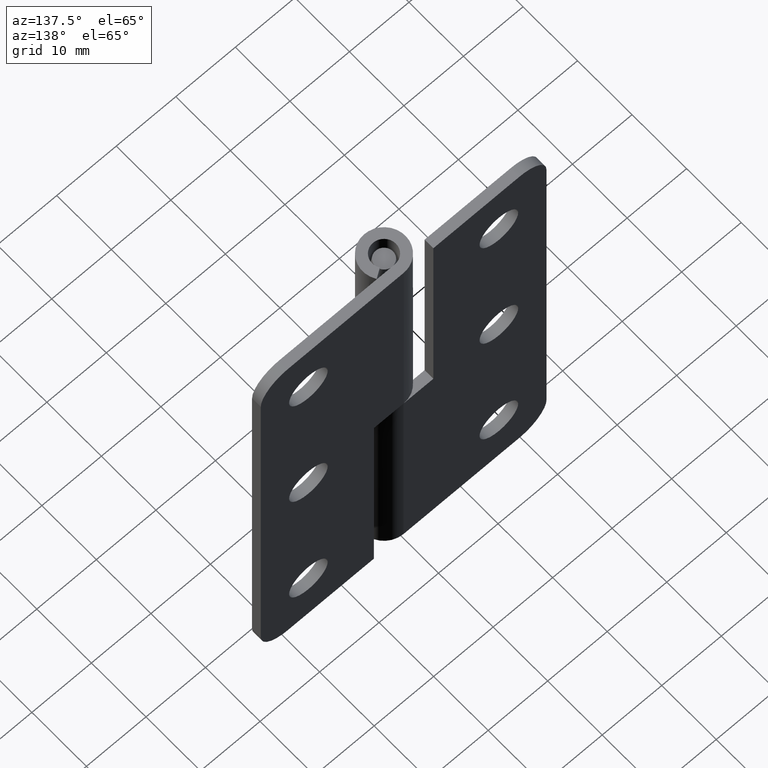
[diagram: clean part render]
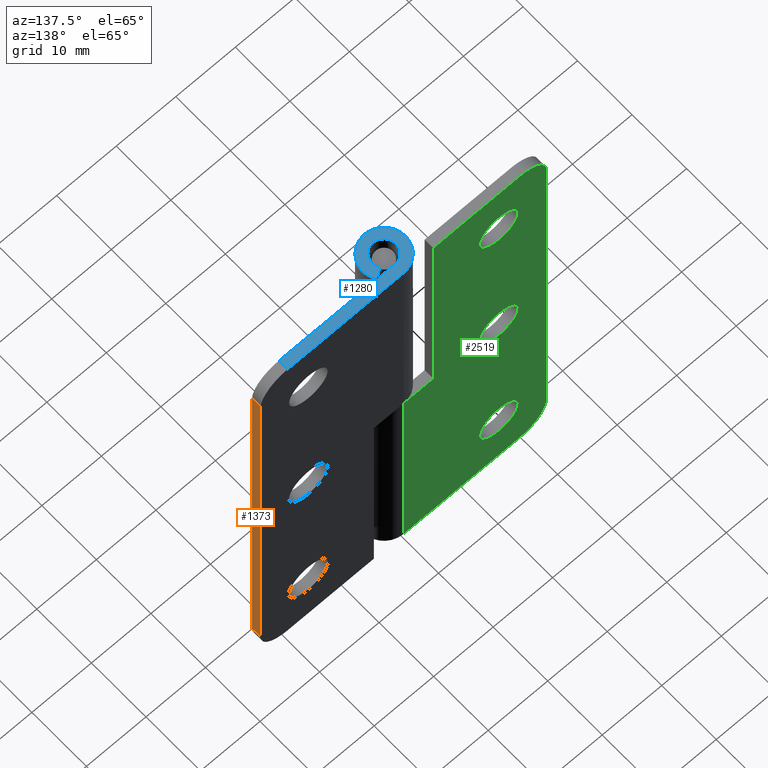
[diagram: same view with three faces highlighted in distinct colors, each labeled with its STEP entity id]
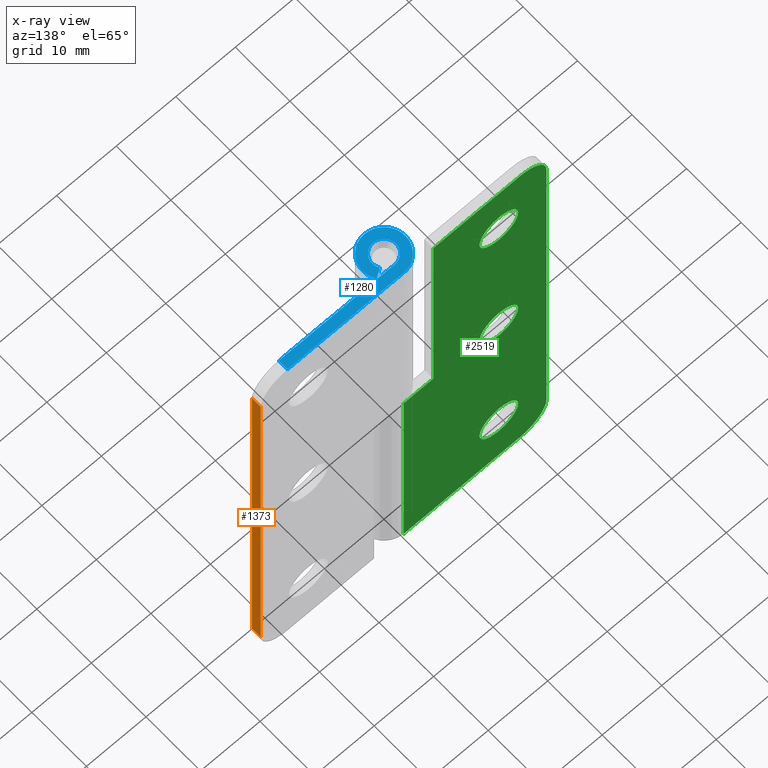
[diagram: x-ray of the same camera — body ghosted, the three highlighted faces saturated]
A machine part, auxiliary view with three faces highlighted in distinct colors.
The next image is the same camera in x-ray (body ghosted, the three faces saturated) — at least one of them is partly hidden behind the body in this view.
Their STEP definitions:

[orange] entity #1373 — the highlighted face is a freeform B-spline surface patch.
#1103=CARTESIAN_POINT('',(24.0,3.600002000000000,4.499999999999949));
#1104=VERTEX_POINT('',#1103);
#1120=CARTESIAN_POINT('',(24.0,2.000004000000000,4.499999999999949));
#1121=VERTEX_POINT('',#1120);
#1122=CARTESIAN_POINT('',(24.0,2.000004000000000,4.499999999999949));
#1123=CARTESIAN_POINT('',(24.0,3.600002000000000,4.499999999999949));
#1124=QUASI_UNIFORM_CURVE('',1,(#1122,#1123),.UNSPECIFIED.,.F.,.U.);
#1125=EDGE_CURVE('',#1121,#1104,#1124,.T.);
#1166=CARTESIAN_POINT('',(24.0,3.600002000000000,72.0));
#1167=VERTEX_POINT('',#1166);
#1188=CARTESIAN_POINT('',(24.0,2.000004000000000,72.0));
#1189=VERTEX_POINT('',#1188);
#1203=CARTESIAN_POINT('',(24.0,3.600002000000000,72.0));
#1204=CARTESIAN_POINT('',(24.0,2.000004000000000,72.0));
#1205=QUASI_UNIFORM_CURVE('',1,(#1203,#1204),.UNSPECIFIED.,.F.,.U.);
#1206=EDGE_CURVE('',#1167,#1189,#1205,.T.);
#1354=CARTESIAN_POINT('',(24.0,1.920084148060016,1.128375130828042));
#1355=CARTESIAN_POINT('',(24.0,1.920084148060016,75.371626679662995));
#1356=CARTESIAN_POINT('',(24.0,3.679921937770566,1.128375130828042));
#1357=CARTESIAN_POINT('',(24.0,3.679921937770566,75.371626679662995));
#1358=B_SPLINE_SURFACE_WITH_KNOTS('',1,1,((#1354,#1356),(#1355,#1357)),.UNSPECIFIED.,.F.,.F.,.U.,(2,2),(2,2),(0.0,74.243251548834948),(0.041708358416706,0.958291686286777),.UNSPECIFIED.);
#1359=CARTESIAN_POINT('',(24.0,2.000004000000000,4.499999999999949));
#1360=CARTESIAN_POINT('',(24.0,2.000004000000000,72.0));
#1361=QUASI_UNIFORM_CURVE('',1,(#1359,#1360),.UNSPECIFIED.,.F.,.U.);
#1362=EDGE_CURVE('',#1121,#1189,#1361,.T.);
#1363=ORIENTED_EDGE('',*,*,#1362,.F.);
#1364=ORIENTED_EDGE('',*,*,#1125,.T.);
#1365=CARTESIAN_POINT('',(24.0,3.600002000000000,4.499999999999949));
#1366=CARTESIAN_POINT('',(24.0,3.600002000000000,72.0));
#1367=QUASI_UNIFORM_CURVE('',1,(#1365,#1366),.UNSPECIFIED.,.F.,.U.);
#1368=EDGE_CURVE('',#1104,#1167,#1367,.T.);
#1369=ORIENTED_EDGE('',*,*,#1368,.T.);
#1370=ORIENTED_EDGE('',*,*,#1206,.T.);
#1371=EDGE_LOOP('',(#1363,#1364,#1369,#1370));
#1372=FACE_OUTER_BOUND('',#1371,.T.);
#1373=ADVANCED_FACE('',(#1372),#1358,.F.);

[blue] entity #1280 — the highlighted face is a freeform B-spline surface patch.
#1164=CARTESIAN_POINT('',(19.500000000000000,3.600002000000000,76.500000000000000));
#1165=VERTEX_POINT('',#1164);
#1181=CARTESIAN_POINT('',(19.500000000000000,2.000004000000000,76.500000000000000));
#1182=VERTEX_POINT('',#1181);
#1183=CARTESIAN_POINT('',(19.500000000000000,2.000004000000000,76.500000000000000));
#1184=CARTESIAN_POINT('',(19.500000000000000,3.600002000000000,76.500000000000000));
#1185=QUASI_UNIFORM_CURVE('',1,(#1183,#1184),.UNSPECIFIED.,.F.,.U.);
#1186=EDGE_CURVE('',#1182,#1165,#1185,.T.);
#1211=CARTESIAN_POINT('',(-4.753441912770849,-3.958021162051402,76.500000000000000));
#1212=CARTESIAN_POINT('',(20.653826400589910,-3.958021162051402,76.500000000000000));
#1213=CARTESIAN_POINT('',(-4.753441912770849,3.959565260835687,76.500000000000000));
#1214=CARTESIAN_POINT('',(20.653826400589910,3.959565260835687,76.500000000000000));
#1215=B_SPLINE_SURFACE_WITH_KNOTS('',1,1,((#1211,#1213),(#1212,#1214)),.UNSPECIFIED.,.F.,.F.,.U.,(2,2),(2,2),(0.0,25.407268313360760),(0.0,7.917586422887089),.UNSPECIFIED.);
#1216=CARTESIAN_POINT('',(0.0,2.000004000000000,76.500000000000000));
#1217=VERTEX_POINT('',#1216);
#1218=CARTESIAN_POINT('',(19.500000000000000,2.000004000000000,76.500000000000000));
#1219=CARTESIAN_POINT('',(0.0,2.000004000000000,76.500000000000000));
#1220=QUASI_UNIFORM_CURVE('',1,(#1218,#1219),.UNSPECIFIED.,.F.,.U.);
#1221=EDGE_CURVE('',#1182,#1217,#1220,.T.);
#1222=ORIENTED_EDGE('',*,*,#1221,.F.);
#1223=ORIENTED_EDGE('',*,*,#1186,.T.);
#1224=CARTESIAN_POINT('',(3.552714E-015,3.600002000000000,76.500000000000000));
#1225=VERTEX_POINT('',#1224);
#1226=CARTESIAN_POINT('',(3.552714E-015,3.600002000000000,76.500000000000000));
#1227=CARTESIAN_POINT('',(19.500000000000000,3.600002000000000,76.500000000000000));
#1228=QUASI_UNIFORM_CURVE('',1,(#1226,#1227),.UNSPECIFIED.,.F.,.U.);
#1229=EDGE_CURVE('',#1225,#1165,#1228,.T.);
#1230=ORIENTED_EDGE('',*,*,#1229,.F.);
#1231=CARTESIAN_POINT('',(3.026135952000170,1.950004000000000,76.500000000000000));
#1232=VERTEX_POINT('',#1231);
#1233=CARTESIAN_POINT('',(3.026135952000172,1.950004000000004,76.500000000000000));
#1234=CARTESIAN_POINT('',(4.541422579701197,-0.401510838775281,76.500000000000000));
#1235=CARTESIAN_POINT('',(2.637066834372013,-2.450692333006975,76.500000000000000));
#1236=CARTESIAN_POINT('',(0.732711089042830,-4.499873827238669,76.500000000000000));
#1237=CARTESIAN_POINT('',(-1.723368228208354,-3.160698712311251,76.500000000000000));
#1238=CARTESIAN_POINT('',(-4.179447545459538,-1.821523597383835,76.500000000000000));
#1239=CARTESIAN_POINT('',(-3.488447798500210,0.889239201308085,76.500000000000000));
#1240=CARTESIAN_POINT('',(-2.797448051540883,3.600002000000000,76.500000000000000));
#1241=CARTESIAN_POINT('',(0.0,3.600002000000000,76.500000000000000));
#1249=(BOUNDED_CURVE()B_SPLINE_CURVE(2,(#1233,#1234,#1235,#1236,#1237,#1238,#1239,#1240,#1241),.UNSPECIFIED.,.F.,.U.)B_SPLINE_CURVE_WITH_KNOTS((3,2,2,2,3),(0.0,0.250000000000000,0.500000000000000,0.750000000000000,1.0),.UNSPECIFIED.)CURVE()GEOMETRIC_REPRESENTATION_ITEM()RATIONAL_B_SPLINE_CURVE((1.0,0.789623566018660,1.0,0.789623566018660,1.0,0.789623566018660,1.0,0.789623566018660,1.0))REPRESENTATION_ITEM(''));
#1250=EDGE_CURVE('',#1232,#1225,#1249,.T.);
#1251=ORIENTED_EDGE('',*,*,#1250,.F.);
#1252=CARTESIAN_POINT('',(1.681189068379450,1.083337120372716,76.500000000000000));
#1253=VERTEX_POINT('',#1252);
#1254=CARTESIAN_POINT('',(1.681189068379450,1.083337120372716,76.500000000000000));
#1255=CARTESIAN_POINT('',(3.026135952000170,1.950004000000000,76.500000000000000));
#1256=QUASI_UNIFORM_CURVE('',1,(#1254,#1255),.UNSPECIFIED.,.F.,.U.);
#1257=EDGE_CURVE('',#1253,#1232,#1256,.T.);
#1258=ORIENTED_EDGE('',*,*,#1257,.F.);
#1259=CARTESIAN_POINT('',(1.681189068379448,1.083337120372715,76.500000000000000));
#1260=CARTESIAN_POINT('',(2.523016188627871,-0.223061899297254,76.500000000000014));
#1261=CARTESIAN_POINT('',(1.465039246370244,-1.361497707163295,76.500000000000000));
#1262=CARTESIAN_POINT('',(0.407062304112617,-2.499933515029336,76.500000000000014));
#1263=CARTESIAN_POINT('',(-0.957428176398127,-1.755946265423563,76.500000000000000));
#1264=CARTESIAN_POINT('',(-2.321918656908872,-1.011959015817789,76.500000000000014));
#1265=CARTESIAN_POINT('',(-1.938029354092475,0.494022492091105,76.500000000000000));
#1266=CARTESIAN_POINT('',(-1.554140051276078,2.000004000000001,76.500000000000014));
#1267=CARTESIAN_POINT('',(0.0,2.000004000000000,76.500000000000000));
#1275=(BOUNDED_CURVE()B_SPLINE_CURVE(2,(#1259,#1260,#1261,#1262,#1263,#1264,#1265,#1266,#1267),.UNSPECIFIED.,.F.,.U.)B_SPLINE_CURVE_WITH_KNOTS((3,2,2,2,3),(0.0,0.250000000000000,0.500000000000000,0.750000000000000,1.0),.UNSPECIFIED.)CURVE()GEOMETRIC_REPRESENTATION_ITEM()RATIONAL_B_SPLINE_CURVE((1.0,0.789623566018660,1.0,0.789623566018660,1.0,0.789623566018660,1.0,0.789623566018660,1.0))REPRESENTATION_ITEM(''));
#1276=EDGE_CURVE('',#1253,#1217,#1275,.T.);
#1277=ORIENTED_EDGE('',*,*,#1276,.T.);
#1278=EDGE_LOOP('',(#1222,#1223,#1230,#1251,#1258,#1277));
#1279=FACE_OUTER_BOUND('',#1278,.T.);
#1280=ADVANCED_FACE('',(#1279),#1215,.T.);

[green] entity #2519 — the highlighted face is a freeform B-spline surface patch.
#1534=CARTESIAN_POINT('',(-16.0,3.600002000000000,69.500000000000000));
#1535=VERTEX_POINT('',#1534);
#1536=CARTESIAN_POINT('',(-19.239981334625838,3.600002000000000,66.504992061202245));
#1537=VERTEX_POINT('',#1536);
#1538=CARTESIAN_POINT('',(-16.0,3.600002000000000,69.500000000000000));
#1539=CARTESIAN_POINT('',(-19.004269097727789,3.600002000000001,69.500000000000000));
#1540=CARTESIAN_POINT('',(-19.239981334625838,3.600002000000000,66.504992061202245));
#1548=(BOUNDED_CURVE()B_SPLINE_CURVE(2,(#1538,#1539,#1540),.UNSPECIFIED.,.F.,.U.)B_SPLINE_CURVE_WITH_KNOTS((3,3),(0.0,0.236331300623586),.UNSPECIFIED.)CURVE()GEOMETRIC_REPRESENTATION_ITEM()RATIONAL_B_SPLINE_CURVE((1.0,0.723120658615952,0.969723356152656))REPRESENTATION_ITEM(''));
#1549=EDGE_CURVE('',#1535,#1537,#1548,.T.);
#1551=CARTESIAN_POINT('',(-12.760018665374171,3.600002000000000,65.995007938797755));
#1552=VERTEX_POINT('',#1551);
#1553=CARTESIAN_POINT('',(-12.760018665374162,3.600002000000001,65.995007938797755));
#1554=CARTESIAN_POINT('',(-12.750000000000007,3.600002000000000,66.122307152137921));
#1555=CARTESIAN_POINT('',(-12.750000000000000,3.600002000000000,66.250000000000000));
#1556=CARTESIAN_POINT('',(-12.750000000000002,3.600002000000001,69.500000000000000));
#1557=CARTESIAN_POINT('',(-16.0,3.600002000000000,69.500000000000000));
#1565=(BOUNDED_CURVE()B_SPLINE_CURVE(2,(#1553,#1554,#1555,#1556,#1557),.UNSPECIFIED.,.F.,.U.)B_SPLINE_CURVE_WITH_KNOTS((3,2,3),(0.736331300623587,0.750000000000000,1.0),.UNSPECIFIED.)CURVE()GEOMETRIC_REPRESENTATION_ITEM()RATIONAL_B_SPLINE_CURVE((0.969723356152659,0.983986122570596,1.0,0.707106781186547,1.0))REPRESENTATION_ITEM(''));
#1566=EDGE_CURVE('',#1552,#1535,#1565,.T.);
#1633=CARTESIAN_POINT('',(-16.0,3.600002000000000,63.0));
#1634=VERTEX_POINT('',#1633);
#1635=CARTESIAN_POINT('',(-19.239981334625842,3.600002000000000,66.504992061202245));
#1636=CARTESIAN_POINT('',(-19.250000000000000,3.600002000000001,66.377692847862093));
#1637=CARTESIAN_POINT('',(-19.250000000000000,3.600002000000000,66.250000000000000));
#1638=CARTESIAN_POINT('',(-19.250000000000000,3.600002000000001,63.0));
#1639=CARTESIAN_POINT('',(-16.0,3.600002000000000,63.0));
#1647=(BOUNDED_CURVE()B_SPLINE_CURVE(2,(#1635,#1636,#1637,#1638,#1639),.UNSPECIFIED.,.F.,.U.)B_SPLINE_CURVE_WITH_KNOTS((3,2,3),(0.236331300623587,0.250000000000000,0.500000000000000),.UNSPECIFIED.)CURVE()GEOMETRIC_REPRESENTATION_ITEM()RATIONAL_B_SPLINE_CURVE((0.969723356152657,0.983986122570595,1.0,0.707106781186547,1.0))REPRESENTATION_ITEM(''));
#1648=EDGE_CURVE('',#1537,#1634,#1647,.T.);
#1682=CARTESIAN_POINT('',(-16.0,3.600002000000000,63.0));
#1683=CARTESIAN_POINT('',(-12.995730902272211,3.600002000000000,63.000000000000007));
#1684=CARTESIAN_POINT('',(-12.760018665374171,3.600002000000001,65.995007938797755));
#1692=(BOUNDED_CURVE()B_SPLINE_CURVE(2,(#1682,#1683,#1684),.UNSPECIFIED.,.F.,.U.)B_SPLINE_CURVE_WITH_KNOTS((3,3),(0.500000000000000,0.736331300623587),.UNSPECIFIED.)CURVE()GEOMETRIC_REPRESENTATION_ITEM()RATIONAL_B_SPLINE_CURVE((1.0,0.723120658615952,0.969723356152657))REPRESENTATION_ITEM(''));
#1693=EDGE_CURVE('',#1634,#1552,#1692,.T.);
#1716=CARTESIAN_POINT('',(-16.0,3.600002000000000,41.500000000000000));
#1717=VERTEX_POINT('',#1716);
#1718=CARTESIAN_POINT('',(-19.239981334625838,3.600002000000000,38.504992061202252));
#1719=VERTEX_POINT('',#1718);
#1720=CARTESIAN_POINT('',(-16.0,3.600002000000000,41.500000000000000));
#1721=CARTESIAN_POINT('',(-19.004269097727803,3.600002000000002,41.500000000000000));
#1722=CARTESIAN_POINT('',(-19.239981334625842,3.600002000000000,38.504992061202245));
#1730=(BOUNDED_CURVE()B_SPLINE_CURVE(2,(#1720,#1721,#1722),.UNSPECIFIED.,.F.,.U.)B_SPLINE_CURVE_WITH_KNOTS((3,3),(0.0,0.236331300623587),.UNSPECIFIED.)CURVE()GEOMETRIC_REPRESENTATION_ITEM()RATIONAL_B_SPLINE_CURVE((1.0,0.723120658615951,0.969723356152658))REPRESENTATION_ITEM(''));
#1731=EDGE_CURVE('',#1717,#1719,#1730,.T.);
#1733=CARTESIAN_POINT('',(-12.760018665374160,3.600002000000000,37.995007938797762));
#1734=VERTEX_POINT('',#1733);
#1735=CARTESIAN_POINT('',(-12.760018665374165,3.600002000000000,37.995007938797755));
#1736=CARTESIAN_POINT('',(-12.750000000000004,3.600002000000001,38.122307152137914));
#1737=CARTESIAN_POINT('',(-12.750000000000000,3.600002000000000,38.250000000000000));
#1738=CARTESIAN_POINT('',(-12.750000000000002,3.600002000000001,41.500000000000000));
#1739=CARTESIAN_POINT('',(-16.0,3.600002000000000,41.500000000000000));
#1747=(BOUNDED_CURVE()B_SPLINE_CURVE(2,(#1735,#1736,#1737,#1738,#1739),.UNSPECIFIED.,.F.,.U.)B_SPLINE_CURVE_WITH_KNOTS((3,2,3),(0.736331300623587,0.750000000000000,1.0),.UNSPECIFIED.)CURVE()GEOMETRIC_REPRESENTATION_ITEM()RATIONAL_B_SPLINE_CURVE((0.969723356152658,0.983986122570596,1.0,0.707106781186547,1.0))REPRESENTATION_ITEM(''));
#1748=EDGE_CURVE('',#1734,#1717,#1747,.T.);
#1815=CARTESIAN_POINT('',(-16.0,3.600002000000000,34.999999999999993));
#1816=VERTEX_POINT('',#1815);
#1817=CARTESIAN_POINT('',(-19.239981334625835,3.600002000000000,38.504992061202245));
#1818=CARTESIAN_POINT('',(-19.249999999999996,3.600002000000000,38.377692847862072));
#1819=CARTESIAN_POINT('',(-19.250000000000000,3.600002000000000,38.250000000000000));
#1820=CARTESIAN_POINT('',(-19.250000000000000,3.600002000000001,35.0));
#1821=CARTESIAN_POINT('',(-16.0,3.600002000000000,34.999999999999993));
#1829=(BOUNDED_CURVE()B_SPLINE_CURVE(2,(#1817,#1818,#1819,#1820,#1821),.UNSPECIFIED.,.F.,.U.)B_SPLINE_CURVE_WITH_KNOTS((3,2,3),(0.236331300623587,0.250000000000000,0.500000000000000),.UNSPECIFIED.)CURVE()GEOMETRIC_REPRESENTATION_ITEM()RATIONAL_B_SPLINE_CURVE((0.969723356152658,0.983986122570596,1.0,0.707106781186547,1.0))REPRESENTATION_ITEM(''));
#1830=EDGE_CURVE('',#1719,#1816,#1829,.T.);
#1864=CARTESIAN_POINT('',(-16.0,3.600002000000000,34.999999999999993));
#1865=CARTESIAN_POINT('',(-12.995730902272211,3.600002000000000,34.999999999999993));
#1866=CARTESIAN_POINT('',(-12.760018665374160,3.600002000000001,37.995007938797755));
#1874=(BOUNDED_CURVE()B_SPLINE_CURVE(2,(#1864,#1865,#1866),.UNSPECIFIED.,.F.,.U.)B_SPLINE_CURVE_WITH_KNOTS((3,3),(0.500000000000000,0.736331300623587),.UNSPECIFIED.)CURVE()GEOMETRIC_REPRESENTATION_ITEM()RATIONAL_B_SPLINE_CURVE((1.0,0.723120658615952,0.969723356152657))REPRESENTATION_ITEM(''));
#1875=EDGE_CURVE('',#1816,#1734,#1874,.T.);
#1898=CARTESIAN_POINT('',(-16.0,3.600002000000000,13.500000000000000));
#1899=VERTEX_POINT('',#1898);
#1900=CARTESIAN_POINT('',(-19.239981334625838,3.600002000000000,10.504992061202250));
#1901=VERTEX_POINT('',#1900);
#1902=CARTESIAN_POINT('',(-16.0,3.600002000000000,13.500000000000000));
#1903=CARTESIAN_POINT('',(-19.004269097727793,3.600002000000000,13.499999999999998));
#1904=CARTESIAN_POINT('',(-19.239981334625842,3.600002000000001,10.504992061202252));
#1912=(BOUNDED_CURVE()B_SPLINE_CURVE(2,(#1902,#1903,#1904),.UNSPECIFIED.,.F.,.U.)B_SPLINE_CURVE_WITH_KNOTS((3,3),(0.0,0.236331300623587),.UNSPECIFIED.)CURVE()GEOMETRIC_REPRESENTATION_ITEM()RATIONAL_B_SPLINE_CURVE((1.0,0.723120658615952,0.969723356152657))REPRESENTATION_ITEM(''));
#1913=EDGE_CURVE('',#1899,#1901,#1912,.T.);
#1915=CARTESIAN_POINT('',(-12.760018665374171,3.600002000000001,9.995007938797750));
#1916=VERTEX_POINT('',#1915);
#1917=CARTESIAN_POINT('',(-12.760018665374167,3.600002000000001,9.995007938797750));
#1918=CARTESIAN_POINT('',(-12.750000000000004,3.600002000000000,10.122307152137919));
#1919=CARTESIAN_POINT('',(-12.750000000000000,3.600002000000000,10.250000000000000));
#1920=CARTESIAN_POINT('',(-12.750000000000002,3.600002000000001,13.500000000000000));
#1921=CARTESIAN_POINT('',(-16.0,3.600002000000000,13.500000000000000));
#1929=(BOUNDED_CURVE()B_SPLINE_CURVE(2,(#1917,#1918,#1919,#1920,#1921),.UNSPECIFIED.,.F.,.U.)B_SPLINE_CURVE_WITH_KNOTS((3,2,3),(0.736331300623587,0.750000000000000,1.0),.UNSPECIFIED.)CURVE()GEOMETRIC_REPRESENTATION_ITEM()RATIONAL_B_SPLINE_CURVE((0.969723356152657,0.983986122570596,1.0,0.707106781186547,1.0))REPRESENTATION_ITEM(''));
#1930=EDGE_CURVE('',#1916,#1899,#1929,.T.);
#1997=CARTESIAN_POINT('',(-16.0,3.600002000000000,7.000000000000001));
#1998=VERTEX_POINT('',#1997);
#1999=CARTESIAN_POINT('',(-19.239981334625838,3.600002000000000,10.504992061202248));
#2000=CARTESIAN_POINT('',(-19.250000000000000,3.600002000000001,10.377692847862079));
#2001=CARTESIAN_POINT('',(-19.250000000000000,3.600002000000000,10.250000000000000));
#2002=CARTESIAN_POINT('',(-19.250000000000000,3.600002000000001,7.000000000000002));
#2003=CARTESIAN_POINT('',(-16.0,3.600002000000000,7.000000000000001));
#2011=(BOUNDED_CURVE()B_SPLINE_CURVE(2,(#1999,#2000,#2001,#2002,#2003),.UNSPECIFIED.,.F.,.U.)B_SPLINE_CURVE_WITH_KNOTS((3,2,3),(0.236331300623587,0.250000000000000,0.500000000000000),.UNSPECIFIED.)CURVE()GEOMETRIC_REPRESENTATION_ITEM()RATIONAL_B_SPLINE_CURVE((0.969723356152658,0.983986122570596,1.0,0.707106781186547,1.0))REPRESENTATION_ITEM(''));
#2012=EDGE_CURVE('',#1901,#1998,#2011,.T.);
#2046=CARTESIAN_POINT('',(-16.0,3.600002000000000,7.000000000000001));
#2047=CARTESIAN_POINT('',(-12.995730902272211,3.600002000000000,7.000000000000002));
#2048=CARTESIAN_POINT('',(-12.760018665374171,3.600002000000001,9.995007938797750));
#2056=(BOUNDED_CURVE()B_SPLINE_CURVE(2,(#2046,#2047,#2048),.UNSPECIFIED.,.F.,.U.)B_SPLINE_CURVE_WITH_KNOTS((3,3),(0.500000000000000,0.736331300623587),.UNSPECIFIED.)CURVE()GEOMETRIC_REPRESENTATION_ITEM()RATIONAL_B_SPLINE_CURVE((1.0,0.723120658615952,0.969723356152657))REPRESENTATION_ITEM(''));
#2057=EDGE_CURVE('',#1998,#1916,#2056,.T.);
#2076=CARTESIAN_POINT('',(-5.0,3.600002000000000,38.250000000000000));
#2077=VERTEX_POINT('',#2076);
#2083=CARTESIAN_POINT('',(-5.0,3.600002000000000,76.500000000000000));
#2084=VERTEX_POINT('',#2083);
#2085=CARTESIAN_POINT('',(-5.0,3.600002000000000,38.250000000000000));
#2086=CARTESIAN_POINT('',(-5.0,3.600002000000000,76.500000000000000));
#2087=QUASI_UNIFORM_CURVE('',1,(#2085,#2086),.UNSPECIFIED.,.F.,.U.);
#2088=EDGE_CURVE('',#2077,#2084,#2087,.T.);
#2138=CARTESIAN_POINT('',(0.0,3.600002000000000,38.250000000000000));
#2139=VERTEX_POINT('',#2138);
#2159=CARTESIAN_POINT('',(0.0,3.600002000000000,38.250000000000000));
#2160=CARTESIAN_POINT('',(-5.0,3.600002000000000,38.250000000000000));
#2161=QUASI_UNIFORM_CURVE('',1,(#2159,#2160),.UNSPECIFIED.,.F.,.U.);
#2162=EDGE_CURVE('',#2139,#2077,#2161,.T.);
#2182=CARTESIAN_POINT('',(-19.500000000000000,3.600002000000000,0.0));
#2183=VERTEX_POINT('',#2182);
#2184=CARTESIAN_POINT('',(-24.0,3.600002000000000,4.499999999999949));
#2185=VERTEX_POINT('',#2184);
#2186=CARTESIAN_POINT('',(-19.500000000000000,3.600002000000000,-5.030698E-014));
#2187=CARTESIAN_POINT('',(-24.0,3.600002000000001,-5.030698E-014));
#2188=CARTESIAN_POINT('',(-24.0,3.600002000000000,4.499999999999949));
#2196=(BOUNDED_CURVE()B_SPLINE_CURVE(2,(#2186,#2187,#2188),.UNSPECIFIED.,.F.,.U.)CURVE()GEOMETRIC_REPRESENTATION_ITEM()QUASI_UNIFORM_CURVE()RATIONAL_B_SPLINE_CURVE((1.0,0.707106781186547,1.0))REPRESENTATION_ITEM(''));
#2197=EDGE_CURVE('',#2183,#2185,#2196,.T.);
#2243=CARTESIAN_POINT('',(-24.0,3.600002000000000,72.0));
#2244=VERTEX_POINT('',#2243);
#2245=CARTESIAN_POINT('',(-19.500000000000000,3.600002000000000,76.500000000000000));
#2246=VERTEX_POINT('',#2245);
#2247=CARTESIAN_POINT('',(-24.0,3.600002000000000,72.0));
#2248=CARTESIAN_POINT('',(-24.0,3.600002000000001,76.500000000000000));
#2249=CARTESIAN_POINT('',(-19.500000000000000,3.600002000000000,76.500000000000000));
#2257=(BOUNDED_CURVE()B_SPLINE_CURVE(2,(#2247,#2248,#2249),.UNSPECIFIED.,.F.,.U.)CURVE()GEOMETRIC_REPRESENTATION_ITEM()QUASI_UNIFORM_CURVE()RATIONAL_B_SPLINE_CURVE((1.0,0.707106781186547,1.0))REPRESENTATION_ITEM(''));
#2258=EDGE_CURVE('',#2244,#2246,#2257,.T.);
#2301=CARTESIAN_POINT('',(-5.0,3.600002000000000,76.500000000000000));
#2302=CARTESIAN_POINT('',(-19.500000000000000,3.600002000000000,76.500000000000000));
#2303=QUASI_UNIFORM_CURVE('',1,(#2301,#2302),.UNSPECIFIED.,.F.,.U.);
#2304=EDGE_CURVE('',#2084,#2246,#2303,.T.);
#2323=CARTESIAN_POINT('',(6.615317E-015,3.600002000000000,0.0));
#2324=VERTEX_POINT('',#2323);
#2325=CARTESIAN_POINT('',(6.615317E-015,3.600002000000000,0.0));
#2326=CARTESIAN_POINT('',(-19.500000000000000,3.600002000000000,0.0));
#2327=QUASI_UNIFORM_CURVE('',1,(#2325,#2326),.UNSPECIFIED.,.F.,.U.);
#2328=EDGE_CURVE('',#2324,#2183,#2327,.T.);
#2402=CARTESIAN_POINT('',(6.615317E-015,3.600002000000000,0.0));
#2403=CARTESIAN_POINT('',(0.0,3.600002000000000,38.250000000000000));
#2404=QUASI_UNIFORM_CURVE('',1,(#2402,#2403),.UNSPECIFIED.,.F.,.U.);
#2405=EDGE_CURVE('',#2324,#2139,#2404,.T.);
#2471=CARTESIAN_POINT('',(-24.0,3.600002000000000,4.499999999999949));
#2472=CARTESIAN_POINT('',(-24.0,3.600002000000000,72.0));
#2473=QUASI_UNIFORM_CURVE('',1,(#2471,#2472),.UNSPECIFIED.,.F.,.U.);
#2474=EDGE_CURVE('',#2185,#2244,#2473,.T.);
#2486=CARTESIAN_POINT('',(-25.198799953483348,3.600002000000000,-3.821174851728156));
#2487=CARTESIAN_POINT('',(-25.198799953483341,3.600002000000000,80.321176903618067));
#2488=CARTESIAN_POINT('',(1.198800597213515,3.600002000000000,-3.821174851728156));
#2489=CARTESIAN_POINT('',(1.198800597213515,3.600002000000000,80.321176903618067));
#2490=B_SPLINE_SURFACE_WITH_KNOTS('',1,1,((#2486,#2488),(#2487,#2489)),.UNSPECIFIED.,.F.,.F.,.U.,(2,2),(2,2),(0.0,84.142351755346226),(0.0,26.397600550696861),.UNSPECIFIED.);
#2491=ORIENTED_EDGE('',*,*,#2162,.F.);
#2492=ORIENTED_EDGE('',*,*,#2405,.F.);
#2493=ORIENTED_EDGE('',*,*,#2328,.T.);
#2494=ORIENTED_EDGE('',*,*,#2197,.T.);
#2495=ORIENTED_EDGE('',*,*,#2474,.T.);
#2496=ORIENTED_EDGE('',*,*,#2258,.T.);
#2497=ORIENTED_EDGE('',*,*,#2304,.F.);
#2498=ORIENTED_EDGE('',*,*,#2088,.F.);
#2499=EDGE_LOOP('',(#2491,#2492,#2493,#2494,#2495,#2496,#2497,#2498));
#2500=FACE_OUTER_BOUND('',#2499,.T.);
#2501=ORIENTED_EDGE('',*,*,#2057,.T.);
#2502=ORIENTED_EDGE('',*,*,#1930,.T.);
#2503=ORIENTED_EDGE('',*,*,#1913,.T.);
#2504=ORIENTED_EDGE('',*,*,#2012,.T.);
#2505=EDGE_LOOP('',(#2501,#2502,#2503,#2504));
#2506=FACE_BOUND('',#2505,.T.);
#2507=ORIENTED_EDGE('',*,*,#1875,.T.);
#2508=ORIENTED_EDGE('',*,*,#1748,.T.);
#2509=ORIENTED_EDGE('',*,*,#1731,.T.);
#2510=ORIENTED_EDGE('',*,*,#1830,.T.);
#2511=EDGE_LOOP('',(#2507,#2508,#2509,#2510));
#2512=FACE_BOUND('',#2511,.T.);
#2513=ORIENTED_EDGE('',*,*,#1693,.T.);
#2514=ORIENTED_EDGE('',*,*,#1566,.T.);
#2515=ORIENTED_EDGE('',*,*,#1549,.T.);
#2516=ORIENTED_EDGE('',*,*,#1648,.T.);
#2517=EDGE_LOOP('',(#2513,#2514,#2515,#2516));
#2518=FACE_BOUND('',#2517,.T.);
#2519=ADVANCED_FACE('',(#2500,#2506,#2512,#2518),#2490,.T.);